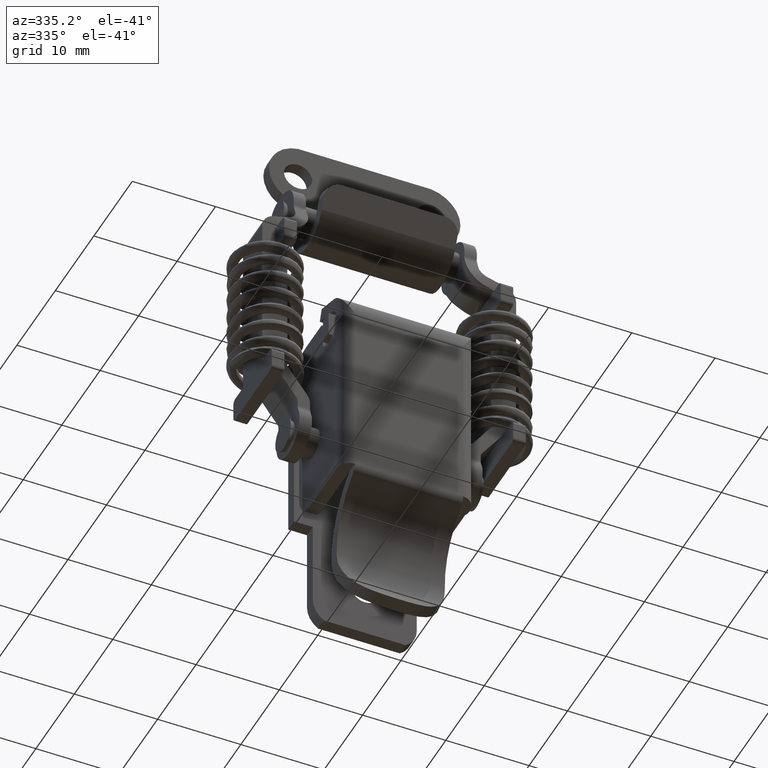
[diagram: clean part render]
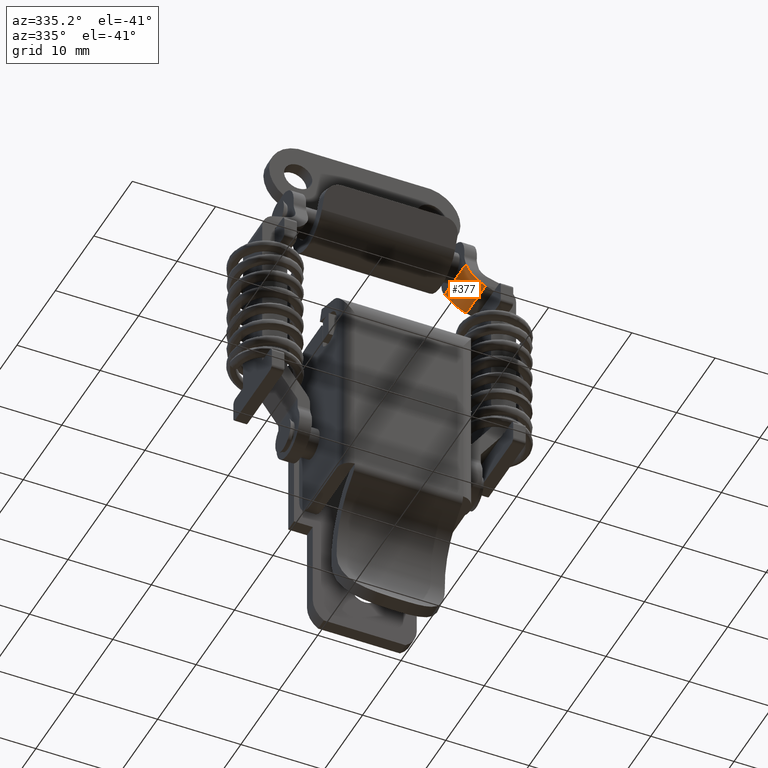
[diagram: same view with one face highlighted and labeled with its STEP entity id]
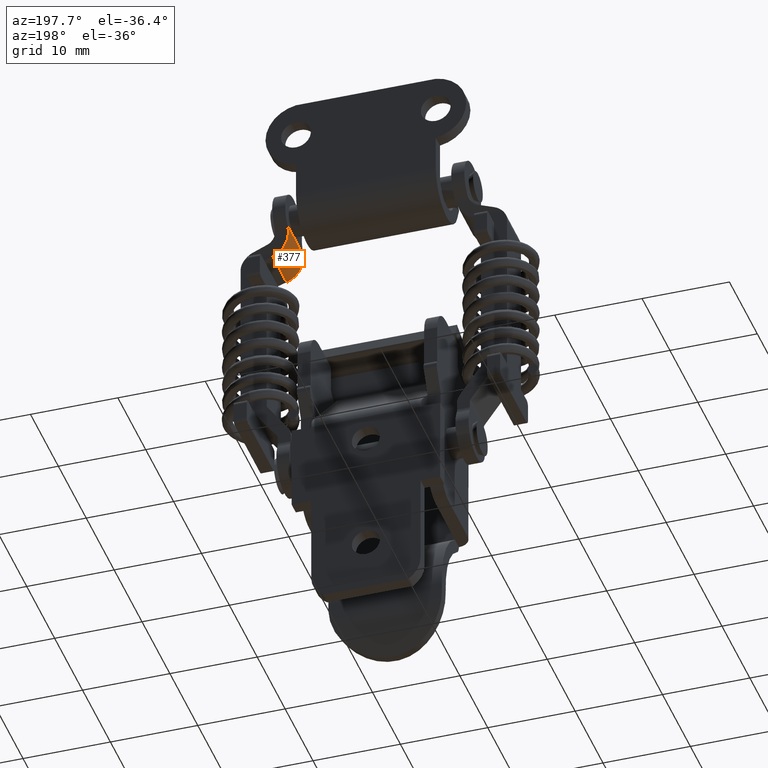
[diagram: same view with one face highlighted and labeled with its STEP entity id]
A machine part, auxiliary view. The second image highlights one B-rep face of the part: STEP entity #377.
A second angle (auxiliary view) of the same face is appended — the face is thin or edge-on in the first view.
In plain terms, the highlighted cylindrical surface (edge-blend (fillet) strip) has radius 3 mm, axis along (0, -1, -0).
Its self-contained STEP definition (entity closure, byte-faithful):
#377=ADVANCED_FACE('',(#1598),#1597,.T.);
#1597=CYLINDRICAL_SURFACE('',#5832,3.00000000000E+00);
#1598=FACE_OUTER_BOUND('',#5833,.T.);
#5829=CARTESIAN_POINT('',(9.96499989080E+02,2.41000000000E+01,-2.08695565602E+00));
#5830=DIRECTION('',(1.00000000000E+00,-0.00000000000E+00,-0.00000000000E+00));
#5831=DIRECTION('',(-0.00000000000E+00,-0.00000000000E+00,-1.00000000000E+00));
#5832=AXIS2_PLACEMENT_3D('',#5829,#5830,#5831);
#5833=EDGE_LOOP('',(#7093,#7094,#7095,#7096,#7097,#7098,#7099,#7100,#7101,#7102));
#7093=ORIENTED_EDGE('',*,*,#8110,.T.);
#7094=ORIENTED_EDGE('',*,*,#8111,.F.);
#7095=ORIENTED_EDGE('',*,*,#8112,.T.);
#7096=ORIENTED_EDGE('',*,*,#8098,.T.);
#7097=ORIENTED_EDGE('',*,*,#8113,.T.);
#7098=ORIENTED_EDGE('',*,*,#8114,.T.);
#7099=ORIENTED_EDGE('',*,*,#8115,.T.);
#7100=ORIENTED_EDGE('',*,*,#8116,.F.);
#7101=ORIENTED_EDGE('',*,*,#8117,.T.);
#7102=ORIENTED_EDGE('',*,*,#8109,.F.);
#8098=EDGE_CURVE('',#10336,#10329,#10337,.T.);
#8109=EDGE_CURVE('',#10404,#10397,#10411,.T.);
#8110=EDGE_CURVE('',#10404,#10417,#10418,.T.);
#8111=EDGE_CURVE('',#10424,#10417,#10425,.T.);
#8112=EDGE_CURVE('',#10424,#10336,#10431,.T.);
#8113=EDGE_CURVE('',#10329,#10437,#10438,.T.);
#8114=EDGE_CURVE('',#10437,#10444,#10445,.T.);
#8115=EDGE_CURVE('',#10444,#10451,#10452,.T.);
#8116=EDGE_CURVE('',#10458,#10451,#10459,.T.);
#8117=EDGE_CURVE('',#10458,#10397,#10465,.T.);
#10329=VERTEX_POINT('',#14292);
#10336=VERTEX_POINT('',#14296);
#10337=(BOUNDED_CURVE() B_SPLINE_CURVE(3,(#14297,#14298,#14299,#14300,#14301,#14302,#14303,#14304,#14305,#14306),.UNSPECIFIED.,.F.,.F.) B_SPLINE_CURVE_WITH_KNOTS((4,2,2,2,4),(4.57158059780E-17,7.40916658632E-04,1.48183331726E-03,2.22274997590E-03,2.96366663453E-03),.UNSPECIFIED.) CURVE() GEOMETRIC_REPRESENTATION_ITEM() RATIONAL_B_SPLINE_CURVE((1.00000000000E+00,1.00000000000E+00,1.00000000000E+00,1.00000000000E+00,1.00000000000E+00,1.00000000000E+00,1.00000000000E+00,1.00000000000E+00,1.00000000000E+00,1.00000000000E+00)) REPRESENTATION_ITEM('') );
#10397=VERTEX_POINT('',#14345);
#10404=VERTEX_POINT('',#14349);
#10411=(BOUNDED_CURVE() B_SPLINE_CURVE(3,(#14353,#14354,#14355,#14356,#14357,#14358),.UNSPECIFIED.,.F.,.F.) B_SPLINE_CURVE_WITH_KNOTS((4,2,4),(0.00000000000E+00,4.72804255767E-04,9.45608511534E-04),.UNSPECIFIED.) CURVE() GEOMETRIC_REPRESENTATION_ITEM() RATIONAL_B_SPLINE_CURVE((1.00000000000E+00,1.00000000000E+00,1.00000000000E+00,1.00000000000E+00,1.00000000000E+00,1.00000000000E+00)) REPRESENTATION_ITEM('') );
#10417=VERTEX_POINT('',#14359);
#10418=CIRCLE('',#14363,3.00000000000E+00);
#10424=VERTEX_POINT('',#14364);
#10425=LINE('',#14365,#14366);
#10431=CIRCLE('',#14371,3.00000000000E+00);
#10437=VERTEX_POINT('',#14372);
#10438=(BOUNDED_CURVE() B_SPLINE_CURVE(2,(#14373,#14374,#14375),.UNSPECIFIED.,.F.,.F.) B_SPLINE_CURVE_WITH_KNOTS((3,3),(4.53938138313E+00,4.71238898038E+00),.UNSPECIFIED.) CURVE() GEOMETRIC_REPRESENTATION_ITEM() RATIONAL_B_SPLINE_CURVE((1.00000000000E+00,9.96260878909E-01,1.00000000000E+00)) REPRESENTATION_ITEM('') );
#10444=VERTEX_POINT('',#14376);
#10445=LINE('',#14377,#14378);
#10451=VERTEX_POINT('',#14380);
#10452=(BOUNDED_CURVE() B_SPLINE_CURVE(3,(#14381,#14382,#14383,#14384),.UNSPECIFIED.,.F.,.F.) B_SPLINE_CURVE_WITH_KNOTS((4,4),(1.07374338614E-17,1.66857354581E-04),.UNSPECIFIED.) CURVE() GEOMETRIC_REPRESENTATION_ITEM() RATIONAL_B_SPLINE_CURVE((1.00000000000E+00,1.00000000000E+00,1.00000000000E+00,1.00000000000E+00)) REPRESENTATION_ITEM('') );
#10458=VERTEX_POINT('',#14385);
#10459=(BOUNDED_CURVE() B_SPLINE_CURVE(3,(#14386,#14387,#14388,#14389,#14390,#14391),.UNSPECIFIED.,.F.,.F.) B_SPLINE_CURVE_WITH_KNOTS((4,2,4),(0.00000000000E+00,3.57223214220E-04,7.14446428440E-04),.UNSPECIFIED.) CURVE() GEOMETRIC_REPRESENTATION_ITEM() RATIONAL_B_SPLINE_CURVE((1.00000000000E+00,1.00000000000E+00,1.00000000000E+00,1.00000000000E+00,1.00000000000E+00,1.00000000000E+00)) REPRESENTATION_ITEM('') );
#10465=(BOUNDED_CURVE() B_SPLINE_CURVE(2,(#14392,#14393,#14394),.UNSPECIFIED.,.F.,.F.) B_SPLINE_CURVE_WITH_KNOTS((3,3),(1.80812486528E+00,2.40711270620E+00),.UNSPECIFIED.) CURVE() GEOMETRIC_REPRESENTATION_ITEM() RATIONAL_B_SPLINE_CURVE((1.00000000000E+00,9.55485923510E-01,1.00000000000E+00)) REPRESENTATION_ITEM('') );
#14292=CARTESIAN_POINT('',(3.60799111512E+00,2.11447855669E+01,-2.60339312040E+00));
#14296=CARTESIAN_POINT('',(3.99998908001E+00,2.28773941749E+01,-4.82652405201E+00));
#14297=CARTESIAN_POINT('',(3.99998908001E+00,2.28773941749E+01,-4.82652405201E+00));
#14298=CARTESIAN_POINT('',(3.99998908001E+00,2.26487099212E+01,-4.72446757441E+00));
#14299=CARTESIAN_POINT('',(3.99772714925E+00,2.24373441879E+01,-4.59632279957E+00));
#14300=CARTESIAN_POINT('',(3.97960093552E+00,2.20483078536E+01,-4.28966016337E+00));
#14301=CARTESIAN_POINT('',(3.96338689345E+00,2.18714650012E+01,-4.11026194857E+00));
#14302=CARTESIAN_POINT('',(3.90837728006E+00,2.15724639106E+01,-3.72148858965E+00));
#14303=CARTESIAN_POINT('',(3.86857814235E+00,2.14459611006E+01,-3.50627042426E+00));
#14304=CARTESIAN_POINT('',(3.76040404795E+00,2.12530257433E+01,-3.06323147399E+00));
#14305=CARTESIAN_POINT('',(3.69252222956E+00,2.11853718675E+01,-2.83564044855E+00));
#14306=CARTESIAN_POINT('',(3.60799111512E+00,2.11447855669E+01,-2.60339312040E+00));
#14345=CARTESIAN_POINT('',(-1.09047198881E+00,2.20893961781E+01,-4.31349383703E+00));
#14349=CARTESIAN_POINT('',(-1.00001091999E+00,2.28773941749E+01,-4.82652405202E+00));
#14353=CARTESIAN_POINT('',(-1.00001091999E+00,2.28773941749E+01,-4.82652405202E+00));
#14354=CARTESIAN_POINT('',(-1.00001091999E+00,2.27319711771E+01,-4.76162514148E+00));
#14355=CARTESIAN_POINT('',(-1.00408927346E+00,2.25934133439E+01,-4.68597332068E+00));
#14356=CARTESIAN_POINT('',(-1.03029069439E+00,2.23301133507E+01,-4.51434054972E+00));
#14357=CARTESIAN_POINT('',(-1.05264106433E+00,2.22044986709E+01,-4.41743344778E+00));
#14358=CARTESIAN_POINT('',(-1.09047198881E+00,2.20893961781E+01,-4.31349383703E+00));
#14359=CARTESIAN_POINT('',(-1.00001091999E+00,2.31792121376E+01,-4.94215262162E+00));
#14360=CARTESIAN_POINT('',(-1.00001091999E+00,2.41000000000E+01,-2.08695565602E+00));
#14361=DIRECTION('',(1.00000000000E+00,0.00000000000E+00,1.05446237564E-12));
#14362=DIRECTION('',(1.05446237564E-12,-0.00000000000E+00,-1.00000000000E+00));
#14363=AXIS2_PLACEMENT_3D('',#14360,#14361,#14362);
#14364=CARTESIAN_POINT('',(3.99998908001E+00,2.31792121376E+01,-4.94215262162E+00));
#14365=CARTESIAN_POINT('',(3.99998908001E+00,2.31792121376E+01,-4.94215262162E+00));
#14366=VECTOR('',#14367,5.00000000000E+00);
#14367=DIRECTION('',(-1.00000000000E+00,0.00000000000E+00,0.00000000000E+00));
#14368=CARTESIAN_POINT('',(3.99998908001E+00,2.41000000000E+01,-2.08695565602E+00));
#14369=DIRECTION('',(-1.00000000000E+00,0.00000000000E+00,-1.03910673845E-12));
#14370=DIRECTION('',(-1.03910673845E-12,-0.00000000000E+00,1.00000000000E+00));
#14371=AXIS2_PLACEMENT_3D('',#14368,#14369,#14370);
#14372=CARTESIAN_POINT('',(3.42002325022E+00,2.11000000000E+01,-2.08695565602E+00));
#14373=CARTESIAN_POINT('',(3.60799111512E+00,2.11447855669E+01,-2.60339312040E+00));
#14374=CARTESIAN_POINT('',(3.51471397900E+00,2.11000000000E+01,-2.34711629516E+00));
#14375=CARTESIAN_POINT('',(3.42002325022E+00,2.11000000000E+01,-2.08695565602E+00));
#14376=CARTESIAN_POINT('',(-2.15514805944E+00,2.11000000000E+01,-2.08695565602E+00));
#14377=CARTESIAN_POINT('',(3.42002325022E+00,2.11000000000E+01,-2.08695565602E+00));
#14378=VECTOR('',#14379,5.57517130966E+00);
#14379=DIRECTION('',(-1.00000000000E+00,0.00000000000E+00,0.00000000000E+00));
#14380=CARTESIAN_POINT('',(-2.03579618308E+00,2.11022660844E+01,-2.20353769258E+00));
#14381=CARTESIAN_POINT('',(-2.15514805944E+00,2.11000000000E+01,-2.08695565602E+00));
#14382=CARTESIAN_POINT('',(-2.11645651501E+00,2.11000000000E+01,-2.12691126511E+00));
#14383=CARTESIAN_POINT('',(-2.07663490533E+00,2.11007987734E+01,-2.16580796859E+00));
#14384=CARTESIAN_POINT('',(-2.03579618308E+00,2.11022660844E+01,-2.20353769258E+00));
#14385=CARTESIAN_POINT('',(-1.64414988344E+00,2.11840914357E+01,-2.79227632387E+00));
#14386=CARTESIAN_POINT('',(-1.64414988344E+00,2.11840914357E+01,-2.79227632387E+00));
#14387=CARTESIAN_POINT('',(-1.68445340909E+00,2.11573065449E+01,-2.68154329723E+00));
#14388=CARTESIAN_POINT('',(-1.73732115219E+00,2.11385098566E+01,-2.57640661712E+00));
#14389=CARTESIAN_POINT('',(-1.86849876910E+00,2.11125032637E+01,-2.37824479625E+00));
#14390=CARTESIAN_POINT('',(-1.94709131062E+00,2.11054531978E+01,-2.28548957963E+00));
#14391=CARTESIAN_POINT('',(-2.03579618308E+00,2.11022660844E+01,-2.20353769258E+00));
#14392=CARTESIAN_POINT('',(-1.64414988344E+00,2.11840914357E+01,-2.79227632387E+00));
#14393=CARTESIAN_POINT('',(-1.31643851518E+00,2.14018816427E+01,-3.69265590827E+00));
#14394=CARTESIAN_POINT('',(-1.09047198881E+00,2.20893961781E+01,-4.31349383703E+00));